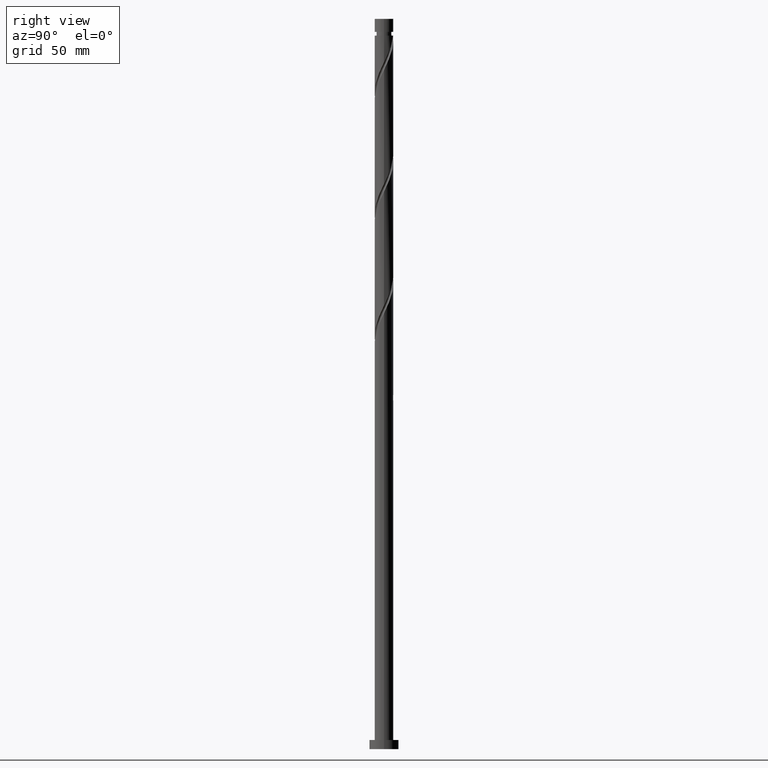
[diagram: clean part render]
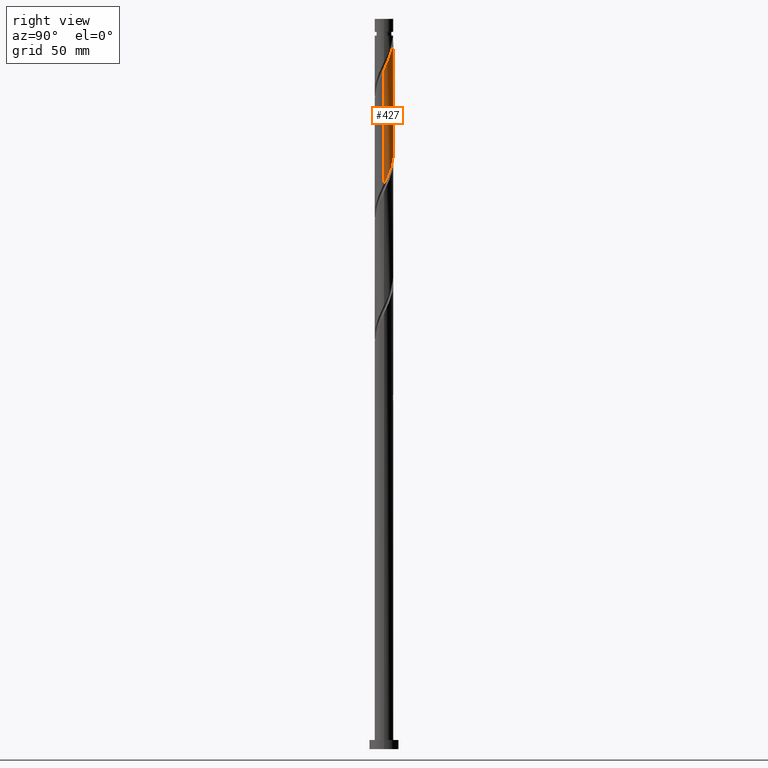
[diagram: same view with one face highlighted and labeled with its STEP entity id]
A machine part, right view. The second image highlights one B-rep face of the part: STEP entity #427.
In plain terms, the highlighted cylindrical surface (edge-blend (fillet) strip) has radius 5.1 mm, axis along (-0, -0, -1).
Its self-contained STEP definition (entity closure, byte-faithful):
#22 = VECTOR ( 'NONE', #730, 1000.000000000000000 ) ;
#29 = VERTEX_POINT ( 'NONE', #1865 ) ;
#46 = CARTESIAN_POINT ( 'NONE',  ( 2.604373641281815477, 4.417529605179756125, 383.0686529038524668 ) ) ;
#68 = CARTESIAN_POINT ( 'NONE',  ( 4.439763080642553206, 2.509682009291898996, 377.5130973482970376 ) ) ;
#90 = CARTESIAN_POINT ( 'NONE',  ( -1.014887185848733830, 4.998000000000007326, 390.8464306816302951 ) ) ;
#118 = CARTESIAN_POINT ( 'NONE',  ( 1.014887185848757145, 4.997999999999998444, 324.1797640149635527 ) ) ;
#130 = ORIENTED_EDGE ( 'NONE', *, *, #945, .F. ) ;
#144 = CARTESIAN_POINT ( 'NONE',  ( 5.100000000000000533, 0.2905660609768069835, 310.2441319012029908 ) ) ;
#150 = CARTESIAN_POINT ( 'NONE',  ( 2.523506039414604718, 4.464218536886502164, 320.8464306816301814 ) ) ;
#162 = CARTESIAN_POINT ( 'NONE',  ( 4.121098741290859735, 3.051864191043555330, 316.4019862371856675 ) ) ;
#221 = CARTESIAN_POINT ( 'NONE',  ( 4.703541288989204538, 2.043044105940176713, 376.4019862371857812 ) ) ;
#228 = CARTESIAN_POINT ( 'NONE',  ( 5.025530381258461077, 1.020477468193841331, 374.1797640149634390 ) ) ;
#236 = CARTESIAN_POINT ( 'NONE',  ( 0.04643316485371995483, 5.099788619266659495, 388.6242084594080097 ) ) ;
#245 = CARTESIAN_POINT ( 'NONE',  ( 1.105724163441041963, 4.978692004370492086, 386.4019862371858380 ) ) ;
#274 = CARTESIAN_POINT ( 'NONE',  ( 0.4895762179909050604, 5.104668941549566519, 325.2908751260745817 ) ) ;
#301 = CARTESIAN_POINT ( 'NONE',  ( -0.5824425476983379202, 5.094908296983734708, 327.5130973482968102 ) ) ;
#312 = CARTESIAN_POINT ( 'NONE',  ( -5.099999999999998757, 0.2440043963624255463, 342.4633253995877453 ) ) ;
#317 = EDGE_CURVE ( 'NONE', #1682, #1507, #639, .T. ) ;
#326 = DIRECTION ( 'NONE',  ( -1.000000000000000000, 0.000000000000000000, 0.000000000000000000 ) ) ;
#333 = CARTESIAN_POINT ( 'NONE',  ( -5.099999999999999645, 0.000000000000000000, 400.0000000000000000 ) ) ;
#382 = CARTESIAN_POINT ( 'NONE',  ( 4.175984872295901873, 2.976319912643616394, 378.6242084594080097 ) ) ;
#419 = CARTESIAN_POINT ( 'NONE',  ( 5.066997856243805387, 0.5792518664800757611, 310.8464306816303520 ) ) ;
#427 = ADVANCED_FACE ( 'NONE', ( #1409 ), #625, .T. ) ;
#440 = CARTESIAN_POINT ( 'NONE',  ( 4.665561090286798773, 2.128349028905950124, 314.1797640149635527 ) ) ;
#500 = CARTESIAN_POINT ( 'NONE',  ( 0.000000000000000000, 0.000000000000000000, 390.8464306816302951 ) ) ;
#514 = CARTESIAN_POINT ( 'NONE',  ( 2.116689710232775745, 4.640002658468502794, 384.1797640149635527 ) ) ;
#535 = DIRECTION ( 'NONE',  ( -0.000000000000000000, -0.000000000000000000, -1.000000000000000000 ) ) ;
#539 = CARTESIAN_POINT ( 'NONE',  ( 3.820951375190253962, 3.377918084920322972, 379.7353195705190956 ) ) ;
#545 = VERTEX_POINT ( 'NONE', #1740 ) ;
#581 = LINE ( 'NONE', #1806, #22 ) ;
#599 = CARTESIAN_POINT ( 'NONE',  ( -5.076705030977431754, 0.4868942682435466462, 341.9575417927413810 ) ) ;
#610 = CARTESIAN_POINT ( 'NONE',  ( 4.835838561039001782, 1.620081915079673474, 313.0686529038525237 ) ) ;
#625 = CYLINDRICAL_SURFACE ( 'NONE', #974, 5.099999999999999645 ) ;
#639 = CIRCLE ( 'NONE', #1394, 5.099999999999964118 ) ;
#730 = DIRECTION ( 'NONE',  ( -0.000000000000000000, -0.000000000000000000, -1.000000000000000000 ) ) ;
#739 = CARTESIAN_POINT ( 'NONE',  ( 3.758811671682789068, 3.446931217303476291, 317.5130973482968102 ) ) ;
#746 = VECTOR ( 'NONE', #1567, 1000.000000000000000 ) ;
#751 = CARTESIAN_POINT ( 'NONE',  ( -4.175984872295893879, 2.976319912643616394, 336.4019862371857812 ) ) ;
#778 = ORIENTED_EDGE ( 'NONE', *, *, #1336, .T. ) ;
#781 = CARTESIAN_POINT ( 'NONE',  ( 5.006116031791203902, 1.111814801253401708, 311.9575417927413810 ) ) ;
#799 = LINE ( 'NONE', #333, #746 ) ;
#805 = CARTESIAN_POINT ( 'NONE',  ( 0.000000000000000000, 0.000000000000000000, 400.0000000000000000 ) ) ;
#872 = EDGE_LOOP ( 'NONE', ( #1656, #778, #1973, #130, #1905 ) ) ;
#893 = CARTESIAN_POINT ( 'NONE',  ( 1.540198153706610951, 4.891331058450429481, 323.0686529038525805 ) ) ;
#906 = CARTESIAN_POINT ( 'NONE',  ( -2.604373641281807039, 4.417529605179753460, 331.9575417927413241 ) ) ;
#919 = CARTESIAN_POINT ( 'NONE',  ( 5.100000000000006750, -6.278334476679353309E-16, 372.0543207714420078 ) ) ;
#936 = CARTESIAN_POINT ( 'NONE',  ( -3.035145759683201661, 4.098522931188388618, 333.0686529038524668 ) ) ;
#945 = EDGE_CURVE ( 'NONE', #1682, #29, #799, .T. ) ;
#974 = AXIS2_PLACEMENT_3D ( 'NONE', #805, #1874, #326 ) ;
#1005 = CARTESIAN_POINT ( 'NONE',  ( 1.629005779183738900, 4.862475711757243246, 385.2908751260745817 ) ) ;
#1016 = VERTEX_POINT ( 'NONE', #1447 ) ;
#1047 = CARTESIAN_POINT ( 'NONE',  ( 4.393329915788831030, 2.590106609974752061, 315.2908751260747522 ) ) ;
#1058 = CARTESIAN_POINT ( 'NONE',  ( -1.105724163441035302, 4.978692004370486757, 328.6242084594080666 ) ) ;
#1069 = CARTESIAN_POINT ( 'NONE',  ( -1.629005779183733349, 4.862475711757237917, 329.7353195705191524 ) ) ;
#1110 =( BOUNDED_CURVE ( )  B_SPLINE_CURVE ( 2, ( #919, #1282, #1118, #228, #1628, #221, #68, #382, #539, #1485, #1153, #46, #514, #1005, #245, #1298, #236, #1142, #90 ),
 .UNSPECIFIED., .F., .T. ) 
 B_SPLINE_CURVE_WITH_KNOTS ( ( 3, 2, 2, 2, 2, 2, 2, 2, 2, 3 ),
 ( 0.6795286012773111839, 0.6833333333333333481, 0.6916666666666666519, 0.7000000000000000666, 0.7083333333333333703, 0.7166666666666667851, 0.7250000000000000888, 0.7333333333333336146, 0.7416666666666669183, 0.7500000000000002220 ),
 .UNSPECIFIED. ) 
 CURVE ( )  GEOMETRIC_REPRESENTATION_ITEM ( )  RATIONAL_B_SPLINE_CURVE ( ( 0.9066196499552316990, 0.9068171577856443122, 0.9090909090909433665, 0.9041108139711916403, 0.9090909090909433665, 0.9041108139711916403, 0.9090909090909433665, 0.9041108139711916403, 0.9090909090909433665, 0.9041108139711916403, 0.9090909090909433665, 0.9041108139711916403, 0.9090909090909433665, 0.9041108139711916403, 0.9090909090909433665, 0.9041108139711916403, 0.9090909090909433665, 0.9041108139711915292, 0.9090909090909434775 ) ) 
 REPRESENTATION_ITEM ( '' )  );
#1118 = CARTESIAN_POINT ( 'NONE',  ( 5.076705030977439748, 0.4868942682435418723, 373.0686529038524668 ) ) ;
#1142 = CARTESIAN_POINT ( 'NONE',  ( -0.4895762179909151635, 5.104668941549575401, 389.7353195705191524 ) ) ;
#1153 = CARTESIAN_POINT ( 'NONE',  ( 3.035145759683209654, 4.098522931188393059, 381.9575417927412673 ) ) ;
#1157 = DIRECTION ( 'NONE',  ( -1.000000000000000000, 0.000000000000000000, 0.000000000000000000 ) ) ;
#1232 = CARTESIAN_POINT ( 'NONE',  ( 5.099999999999997868, 4.828338180874867465E-15, 309.6385405918184688 ) ) ;
#1250 = EDGE_CURVE ( 'NONE', #545, #1507, #1110, .T. ) ;
#1282 = CARTESIAN_POINT ( 'NONE',  ( 5.100000000000009415, 0.2440043963624014545, 372.5628692970061024 ) ) ;
#1298 = CARTESIAN_POINT ( 'NONE',  ( 0.5824425476983405847, 5.094908296983741813, 387.5130973482968102 ) ) ;
#1336 = EDGE_CURVE ( 'NONE', #545, #1016, #581, .T. ) ;
#1357 = CARTESIAN_POINT ( 'NONE',  ( -4.864535835123824370, 1.531760787067010465, 339.7353195705190956 ) ) ;
#1368 = CARTESIAN_POINT ( 'NONE',  ( -3.465917878084596282, 3.779516257197026441, 334.1797640149635527 ) ) ;
#1391 = CARTESIAN_POINT ( 'NONE',  ( -0.04643316485371615926, 5.099788619266650613, 326.4019862371857812 ) ) ;
#1394 = AXIS2_PLACEMENT_3D ( 'NONE', #500, #535, #1157 ) ;
#1409 = FACE_OUTER_BOUND ( 'NONE', #872, .T. ) ;
#1447 = CARTESIAN_POINT ( 'NONE',  ( 5.099999999999998757, 4.828338180874868254E-15, 309.6385405918184688 ) ) ;
#1485 = CARTESIAN_POINT ( 'NONE',  ( 3.465917878084602055, 3.779516257197030438, 380.8464306816302383 ) ) ;
#1507 = VERTEX_POINT ( 'NONE', #1796 ) ;
#1519 = CARTESIAN_POINT ( 'NONE',  ( -5.025530381258453971, 1.020477468193841331, 340.8464306816302951 ) ) ;
#1532 = CARTESIAN_POINT ( 'NONE',  ( -5.099999999999964118, 0.000000000000000000, 390.8464306816302951 ) ) ;
#1560 = CARTESIAN_POINT ( 'NONE',  ( 2.031852096560608167, 4.677774797668464046, 321.9575417927412673 ) ) ;
#1567 = DIRECTION ( 'NONE',  ( -0.000000000000000000, -0.000000000000000000, -1.000000000000000000 ) ) ;
#1616 =( BOUNDED_CURVE ( )  B_SPLINE_CURVE ( 2, ( #2001, #312, #599, #1519, #1357, #1993, #1701, #751, #1845, #1368, #936, #906, #1665, #1069, #1058, #301, #1391, #274, #118, #893, #1560, #150, #1985, #1834, #739, #162, #1047, #440, #610, #781, #419, #144, #1232 ),
 .UNSPECIFIED., .F., .T. ) 
 B_SPLINE_CURVE_WITH_KNOTS ( ( 3, 2, 2, 2, 2, 2, 2, 2, 2, 2, 2, 2, 2, 2, 2, 2, 3 ),
 ( 0.4295286012773114614, 0.4333333333333333481, 0.4416666666666666519, 0.4500000000000000111, 0.4583333333333333148, 0.4666666666666666741, 0.4749999999999999778, 0.4833333333333333370, 0.4916666666666666408, 0.5000000000000000000, 0.5083333333333333037, 0.5166666666666667185, 0.5250000000000000222, 0.5333333333333333259, 0.5416666666666666297, 0.5500000000000000444, 0.5545286012773114059 ),
 .UNSPECIFIED. ) 
 CURVE ( )  GEOMETRIC_REPRESENTATION_ITEM ( )  RATIONAL_B_SPLINE_CURVE ( ( 0.9066196499552257038, 0.9068171577856385390, 0.9090909090909373713, 0.9041108139711856451, 0.9090909090909373713, 0.9041108139711856451, 0.9090909090909373713, 0.9041108139711856451, 0.9090909090909373713, 0.9041108139711856451, 0.9090909090909373713, 0.9041108139711856451, 0.9090909090909373713, 0.9041108139711856451, 0.9090909090909373713, 0.9041108139711856451, 0.9090909090909373713, 0.9041108139711856451, 0.9090909090909373713, 0.9041108139711856451, 0.9090909090909373713, 0.9041108139711856451, 0.9090909090909373713, 0.9041108139711856451, 0.9090909090909373713, 0.9041108139711856451, 0.9090909090909373713, 0.9041108139711856451, 0.9090909090909373713, 0.9041108139711856451, 0.9090909090909373713, 0.9063845652764845884, 0.9066196499552257038 ) ) 
 REPRESENTATION_ITEM ( '' )  );
#1628 = CARTESIAN_POINT ( 'NONE',  ( 4.864535835123834140, 1.531760787067008689, 375.2908751260747522 ) ) ;
#1656 = ORIENTED_EDGE ( 'NONE', *, *, #1250, .F. ) ;
#1665 = CARTESIAN_POINT ( 'NONE',  ( -2.116689710232770860, 4.640002658468493024, 330.8464306816302383 ) ) ;
#1682 = VERTEX_POINT ( 'NONE', #1532 ) ;
#1701 = CARTESIAN_POINT ( 'NONE',  ( -4.439763080642544324, 2.509682009291896332, 337.5130973482968102 ) ) ;
#1740 = CARTESIAN_POINT ( 'NONE',  ( 5.100000000000005862, -6.278334476679353309E-16, 372.0543207714420078 ) ) ;
#1761 = EDGE_CURVE ( 'NONE', #29, #1016, #1616, .T. ) ;
#1796 = CARTESIAN_POINT ( 'NONE',  ( -1.014887185848733830, 4.998000000000006438, 390.8464306816302951 ) ) ;
#1806 = CARTESIAN_POINT ( 'NONE',  ( 5.099999999999999645, 6.245698675651499853E-16, 400.0000000000000000 ) ) ;
#1834 = CARTESIAN_POINT ( 'NONE',  ( 3.396524602074721511, 3.841998243563393700, 318.6242084594080097 ) ) ;
#1845 = CARTESIAN_POINT ( 'NONE',  ( -3.820951375190243748, 3.377918084920320307, 335.2908751260746385 ) ) ;
#1865 = CARTESIAN_POINT ( 'NONE',  ( -5.100000000000000533, -3.527826039276993498E-15, 342.9718739251517832 ) ) ;
#1874 = DIRECTION ( 'NONE',  ( -0.000000000000000000, -0.000000000000000000, -1.000000000000000000 ) ) ;
#1905 = ORIENTED_EDGE ( 'NONE', *, *, #317, .T. ) ;
#1973 = ORIENTED_EDGE ( 'NONE', *, *, #1761, .F. ) ;
#1985 = CARTESIAN_POINT ( 'NONE',  ( 2.960015320744664447, 4.153108390224947044, 319.7353195705190956 ) ) ;
#1993 = CARTESIAN_POINT ( 'NONE',  ( -4.703541288989194769, 2.043044105940178934, 338.6242084594078960 ) ) ;
#2001 = CARTESIAN_POINT ( 'NONE',  ( -5.100000000000000533, -3.527826039276993498E-15, 342.9718739251517832 ) ) ;